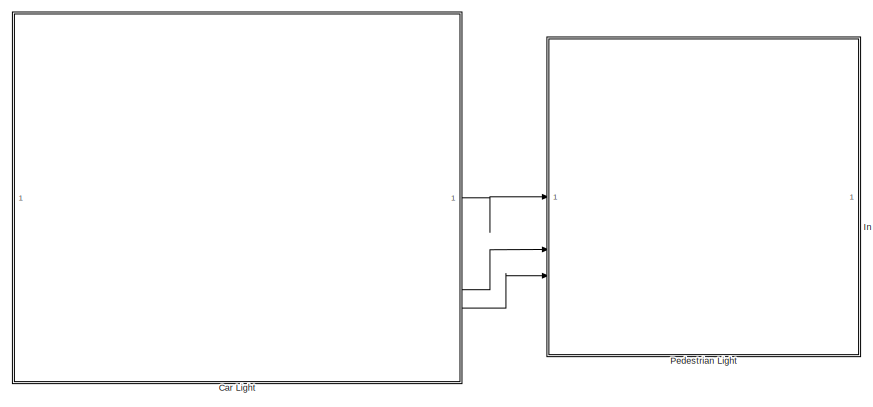
[diagram: root canvas - part 1/2, left side, full height]
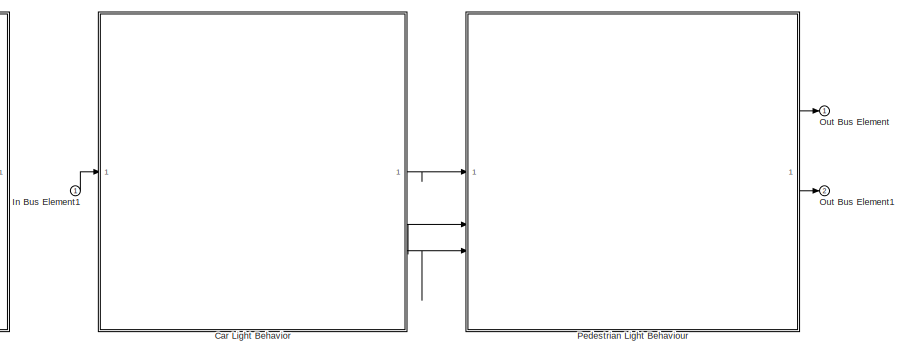
[diagram: root canvas - part 2/2, right side, full height]
MODEL slx_5ce55f7782cc
KIND model
CONFIG AbsTol = auto
CONFIG EnableMultiTasking = off
CONFIG FixedStep = auto
CONFIG MaxStep = auto
CONFIG MinStep = auto
CONFIG RelTol = 1e-3
CONFIG SampleTimeConstraint = Unconstrained
CONFIG SolverName = VariableStepAuto
CONFIG StartTime = 0.0
CONFIG StopTime = 10.0
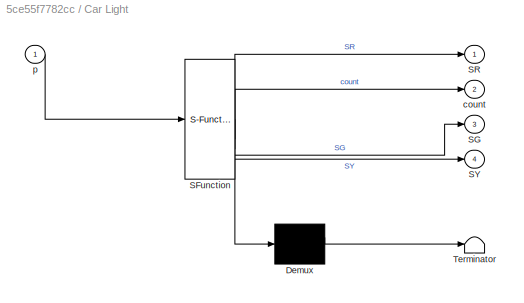
BLOCK [SubSystem] Car Light
  ErrorFcn = Stateflow.Translate.translate
  PermitHierarchicalResolution = ExplicitOnly
  PortSchema = {"entries":[{"content":{"headerSize":26,"margin":15,"minimumSpacing":25,"sides":[{"content":{"connectorIds":["In1"]},"type":"ConnectorPlacement.EquallySpacedRectSide","uuid":"dcad2c70-2645-4f1a-8a68-18ec1ad8ba87"},{"content":{"connectorIds":["Out1","Out2","Out3","Out4"],"side":"RIGHT"},"type":"ConnectorPlacement.EquallySpacedRectSide","uuid":"d956afcc-b59b-4cd9-bf0c-2faf54410a1f"},{"content":{"sid...<+417ch>
  SFBlockType = Chart
  TreatAsAtomicUnit = on
BLOCK [ModelReference] Car Light Behavior
  ModelNameDialog = CarLightBehavior
  ModelReferenceVersion = 1.2
  PortSchema = {"entries":[{"content":{"headerSize":38,"margin":15,"minimumSpacing":25,"sides":[{"content":{"connectorIds":["In1"]},"type":"ConnectorPlacement.EquallySpacedRectSide","uuid":"48726829-d86d-461c-b3f1-a9b4bbd6b695"},{"content":{"connectorIds":["Out1","Out2","Out3","Out4"],"side":"RIGHT"},"type":"ConnectorPlacement.EquallySpacedRectSide","uuid":"4ff77f49-fdf8-4120-97ad-bb22e2b131c5"},{"content":{"sid...<+291ch>
BLOCK [Demux] Car Light/ Demux 
  Outputs = 1
BLOCK [S-Function] Car Light/ SFunction 
  EnableBusSupport = on
  FunctionName = sf_sfun
  PortCounts = [1 5]
  SFcnIsStateOwnerBlock = off
  SFunctionDeploymentMode = off
  Tag = Stateflow S-Function 1
BLOCK [Terminator] Car Light/ Terminator 
BLOCK [Outport] Car Light/SG
  Port = 3
BLOCK [Outport] Car Light/SR
BLOCK [Outport] Car Light/SY
  Port = 4
BLOCK [Outport] Car Light/count
  Port = 2
BLOCK [Inport] Car Light/p
BLOCK [Inport] In Bus Element1
BLOCK [Outport] Out Bus Element
BLOCK [Outport] Out Bus Element1
  Port = 2
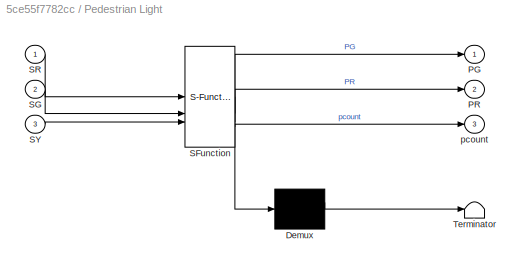
BLOCK [SubSystem] Pedestrian Light
  ErrorFcn = Stateflow.Translate.translate
  PermitHierarchicalResolution = ExplicitOnly
  PortSchema = {"entries":[{"content":{"headerSize":26,"margin":15,"minimumSpacing":25,"sides":[{"content":{"connectorIds":["In1","In2","In3"]},"type":"ConnectorPlacement.EquallySpacedRectSide","uuid":"dcad2c70-2645-4f1a-8a68-18ec1ad8ba87"},{"content":{"connectorIds":["Out1","Out2","Out3"],"side":"RIGHT"},"type":"ConnectorPlacement.EquallySpacedRectSide","uuid":"d956afcc-b59b-4cd9-bf0c-2faf54410a1f"},{"content":...<+296ch>
  SFBlockType = Chart
  TreatAsAtomicUnit = on
BLOCK [ModelReference] Pedestrian Light Behaviour
  ModelNameDialog = PedestrianLightBehaviour
  ModelReferenceVersion = 1.2
  PortSchema = {"entries":[{"content":{"headerSize":38,"margin":15,"minimumSpacing":25,"sides":[{"content":{"connectorIds":["In1","In2","In3"]},"type":"ConnectorPlacement.EquallySpacedRectSide","uuid":"48726829-d86d-461c-b3f1-a9b4bbd6b695"},{"content":{"connectorIds":["Out1","Out2","Out3"],"side":"RIGHT"},"type":"ConnectorPlacement.EquallySpacedRectSide","uuid":"4ff77f49-fdf8-4120-97ad-bb22e2b131c5"},{"content":...<+296ch>
BLOCK [Demux] Pedestrian Light/ Demux 
  Outputs = 1
BLOCK [S-Function] Pedestrian Light/ SFunction 
  EnableBusSupport = on
  FunctionName = sf_sfun
  PortCounts = [3 4]
  SFcnIsStateOwnerBlock = off
  SFunctionDeploymentMode = off
  Tag = Stateflow S-Function 3
BLOCK [Terminator] Pedestrian Light/ Terminator 
BLOCK [Outport] Pedestrian Light/PG
BLOCK [Outport] Pedestrian Light/PR
  Port = 2
BLOCK [Inport] Pedestrian Light/SG
  Port = 2
BLOCK [Inport] Pedestrian Light/SR
BLOCK [Inport] Pedestrian Light/SY
  Port = 3
BLOCK [Outport] Pedestrian Light/pcount
  Port = 3
LINE Car Light Behavior:1 -> Pedestrian Light Behaviour:1
LINE Car Light Behavior:2 -> Pedestrian Light Behaviour:2
LINE Car Light Behavior:3 -> Pedestrian Light Behaviour:3
LINE Car Light:1 -> Pedestrian Light:1
LINE Car Light:3 -> Pedestrian Light:2
LINE Car Light:4 -> Pedestrian Light:3
LINE In Bus Element1:1 -> Car Light Behavior:1
LINE Pedestrian Light Behaviour:1 -> Out Bus Element:1
LINE Pedestrian Light Behaviour:2 -> Out Bus Element1:1
CHART Car Light states=4 transitions=10
  STATE_LABEL 'Green'
  STATE_LABEL 'Red'
  STATE_LABEL 'Yellow'
  STATE_LABEL 'Pending'
CHART Pedestrian Light states=2 transitions=4
  STATE_LABEL 'green'
  STATE_LABEL 'red'
CHART  states=0 transitions=0
CHART  states=0 transitions=0
